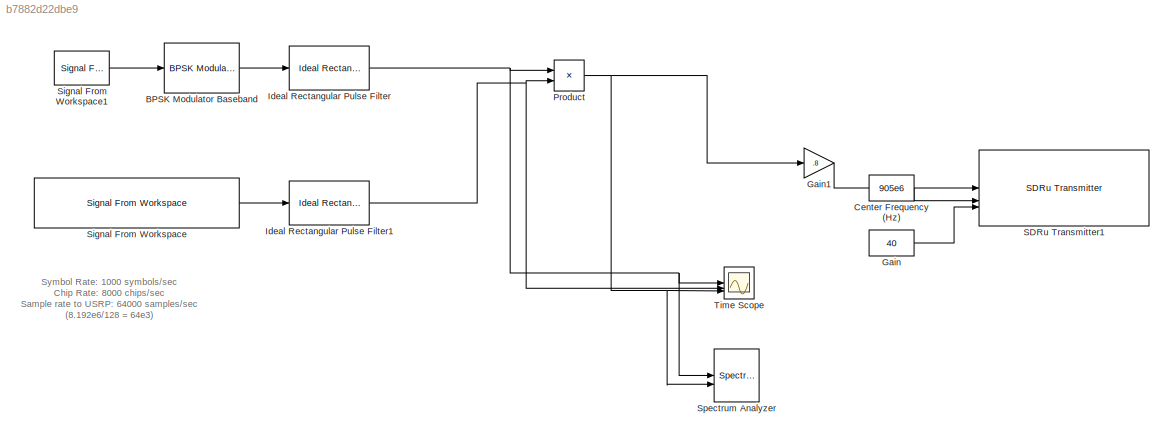
MODEL slx_b7882d22dbe9
KIND model
CONFIG AbsTol = auto
CONFIG EnableMultiTasking = off
CONFIG FixedStep = auto
CONFIG InitFcn = Tb = 1/1000;\nTc = 1/8000;\nfs = 64e3;\nTs = 1/fs;
CONFIG MaxStep = auto
CONFIG MinStep = auto
CONFIG RelTol = 1e-3
CONFIG SampleTimeConstraint = Unconstrained
CONFIG SolverName = VariableStepAuto
CONFIG StartTime = 0.0
CONFIG StopTime = inf
BLOCK [Reference] BPSK Modulator Baseband  REF=commdigbbndpm3/BPSK
Modulator
Baseband
  SourceBlock = commdigbbndpm3/BPSK\nModulator\nBaseband
  SourceType = BPSK Modulator Baseband
BLOCK [Constant] Center Frequency (Hz)
  Value = 905e6
BLOCK [Constant] Gain
  Value = 40
BLOCK [Gain] Gain1
  Gain = .8
BLOCK [Reference] Ideal Rectangular Pulse Filter  REF=commfilt2/Ideal Rectangular
Pulse Filter
  SourceBlock = commfilt2/Ideal Rectangular\nPulse Filter
  SourceType = Ideal Rectangular Pulse Filter
  UserDataPersistent = on
BLOCK [Reference] Ideal Rectangular Pulse Filter1  REF=commfilt2/Ideal Rectangular
Pulse Filter
  SourceBlock = commfilt2/Ideal Rectangular\nPulse Filter
  SourceType = Ideal Rectangular Pulse Filter
  UserDataPersistent = on
BLOCK [Product] Product
BLOCK [Reference] SDRu Transmitter1  REF=commsdrhw_v2/SDRu Transmitter
  SourceBlock = commsdrhw_v2/SDRu Transmitter
  SourceLibraryInfo = This block requires <a href="http://www.mathworks.com/hardware-support/usrp.html">Communications System Toolbox Support Package for USRP Radio</a>
  SourceProductName = Communications System Toolbox Support Package for USRP(R) Radio
  SourceType = SDRu Transmitter
BLOCK [Reference] Signal From Workspace  REF=dspsrcs4/Signal From
Workspace
  SourceBlock = dspsrcs4/Signal From\nWorkspace
  SourceType = Signal From Workspace
BLOCK [Reference] Signal From Workspace1  REF=dspsrcs4/Signal From
Workspace
  SourceBlock = dspsrcs4/Signal From\nWorkspace
  SourceType = Signal From Workspace
BLOCK [SpectrumAnalyzer] Spectrum Analyzer
  AllowFFTLengthLessThanSamplesPerUpdate = on
  AveragingMethod = Running
  AxesScaling = Manual
  Commented = on
  DefaultConfigurationName = spbscopes.SpectrumAnalyzerBlockCfg
  GraphicalSettings = {"GraphicalSettings":{"Style":{"AxesColor":"[0 0 0]","LabelsColor":"[0.686274509803922 0.686274509803922 0.686274509803922]","LineColor":"[[1 1 0.0666666666666667],[0.0745098039215686 0.623529411764706 1]]","LineStyle":"[-,-]","LineWidth":"[1,1]","Marker":"[none,none]","OnceAtStop":"false","Version":"2017a"}}}
  Method = Welch
  NumInputPorts = 2
  SampleRate = 64000
  ScopeSpecificationString = spbscopes.SpectrumAnalyzerBlockCfg('CurrentConfiguration', extmgr.ConfigurationSet(extmgr.Configuration('Core','General UI',true),extmgr.Configuration('Core','Source UI',true),extmgr.Configuration('Sources','WiredSimulink',true),extmgr.Configuration('Visuals','Spectrum',true,'AxesProperties',struct('Color',{[0 0 0],[0 0 0]},'XColor',{[0.686274509803922 0.686274509803922 0.686274509803922],[0.68627...<+1744ch>
  Span = 64000
  StartFrequency = -32000
  StopFrequency = 32000
  WasSavedAsWebScope = on
  WindowPosition = [930 341 800 450]
  YLimits = [-76.213856652897448,31.419009187721635]
BLOCK [Scope] Time Scope
  Commented = on
  DefaultConfigurationName = spbscopes.TimeScopeBlockCfg
  Floating = off
  NumInputPorts = 3
  ScopeSpecificationString = spbscopes.TimeScopeBlockCfg('CurrentConfiguration', extmgr.ConfigurationSet(extmgr.Configuration('Core','General UI',true),extmgr.Configuration('Core','Source UI',true),extmgr.Configuration('Sources','WiredSimulink',true),extmgr.Configuration('Visuals','Time Domain',true,'DisplayLayoutDimensions',[3 1],'DisplayPropertyDefaults',struct('YLabelReal','Amplitude','AxesColor',[0 0 0],'AxesTickColor',[0...<+2745ch>
  UserDataPersistent = on
ANNOTATION (root): Symbol Rate: 1000 symbols/sec Chip Rate: 8000 chips/sec Sample rate to USRP: 64000 samples/sec (8.192e6/128 = 64e3)
LINE BPSK Modulator Baseband:1 -> Ideal Rectangular Pulse Filter:1
LINE Center Frequency (Hz):1 -> SDRu Transmitter1:2
LINE Gain1:1 -> SDRu Transmitter1:1
LINE Gain:1 -> SDRu Transmitter1:3
NET Ideal Rectangular Pulse Filter1:1 -> Product:2, Time Scope:2
NET Ideal Rectangular Pulse Filter:1 -> Product:1, Spectrum Analyzer:1, Time Scope:1
NET Product:1 -> Gain1:1, Spectrum Analyzer:2, Time Scope:3
LINE Signal From Workspace1:1 -> BPSK Modulator Baseband:1
LINE Signal From Workspace:1 -> Ideal Rectangular Pulse Filter1:1
note: NET lines group one-source signal fan-out (src -> all destinations, sorted); 1:1 wires keep LINE
